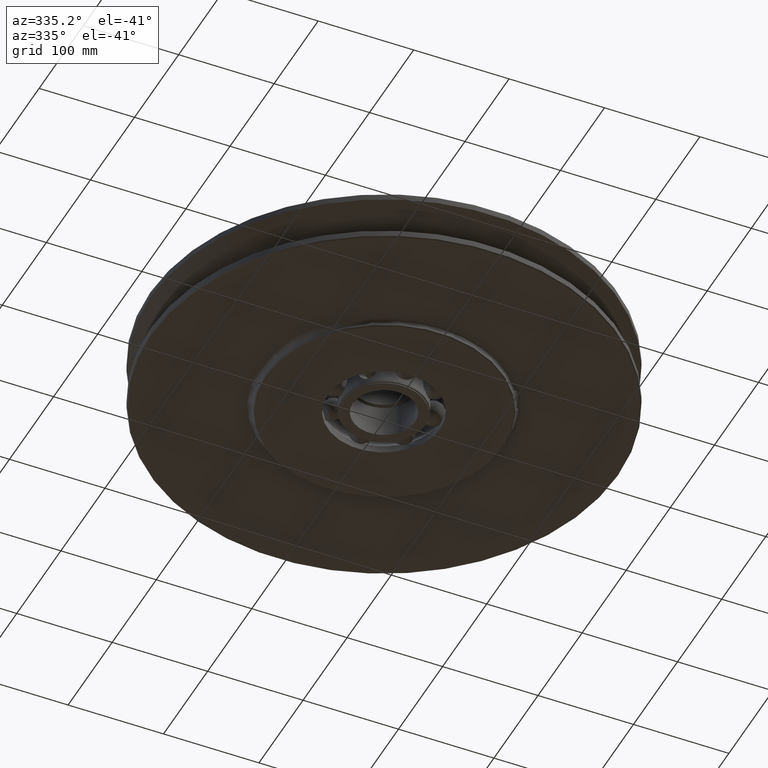
[diagram: clean part render]
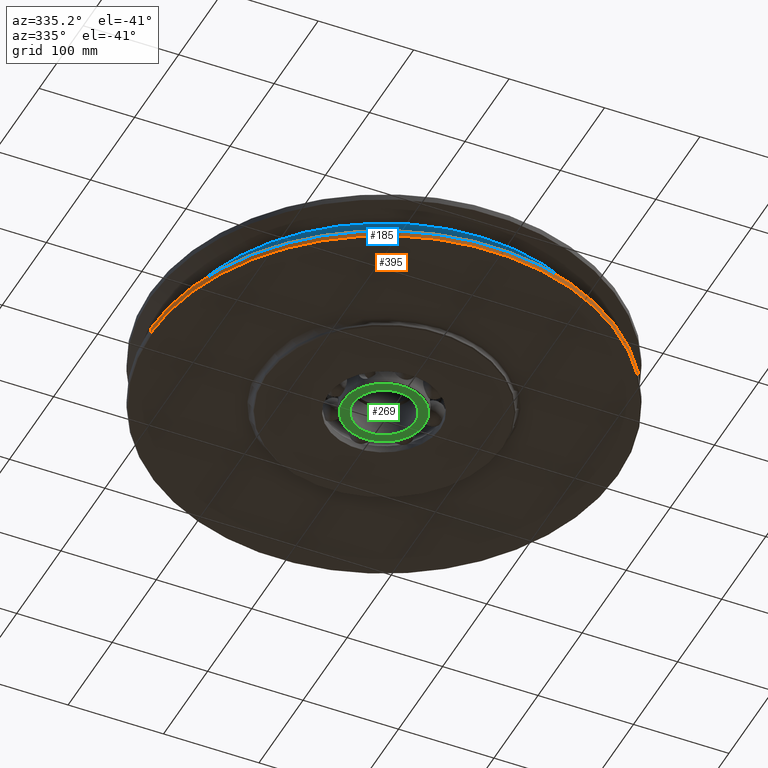
[diagram: same view with three faces highlighted in distinct colors, each labeled with its STEP entity id]
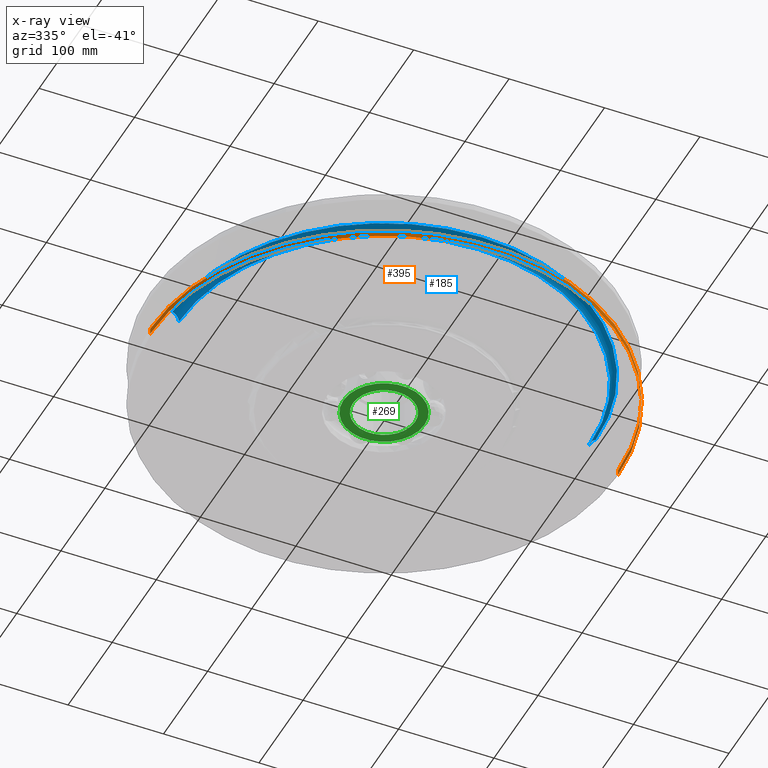
[diagram: x-ray of the same camera — body ghosted, the three highlighted faces saturated]
A machine part, auxiliary view with three faces highlighted in distinct colors.
The next image is the same camera in x-ray (body ghosted, the three faces saturated) — at least one of them is partly hidden behind the body in this view.
Their STEP definitions:

[orange] entity #395 — the highlighted cylindrical surface (partial cylindrical patch) has radius 245 mm, axis along (0, 0, 1).
#395=ADVANCED_FACE('',(#811),#812,.T.);
#811=FACE_OUTER_BOUND('',#1221,.T.);
#812=CYLINDRICAL_SURFACE('',#1222,245.0);
#1221=EDGE_LOOP('',(#2531,#2532,#2533,#2534));
#1222=AXIS2_PLACEMENT_3D('',#2535,#2536,#2537);
#2531=ORIENTED_EDGE('',*,*,#2665,.T.);
#2532=ORIENTED_EDGE('',*,*,#3097,.F.);
#2533=ORIENTED_EDGE('',*,*,#2667,.T.);
#2534=ORIENTED_EDGE('',*,*,#3095,.T.);
#2535=CARTESIAN_POINT('',(0.0,0.0,-22.854777));
#2536=DIRECTION('',(0.0,0.0,1.0));
#2537=DIRECTION('',(1.0,0.0,0.0));
#2665=EDGE_CURVE('',#3278,#3271,#3279,.T.);
#2667=EDGE_CURVE('',#3273,#3280,#3282,.T.);
#3095=EDGE_CURVE('',#3280,#3278,#3912,.T.);
#3097=EDGE_CURVE('',#3273,#3271,#3914,.T.);
#3271=VERTEX_POINT('',#5306);
#3273=VERTEX_POINT('',#5309);
#3278=VERTEX_POINT('',#5315);
#3279=LINE('',#5316,#5317);
#3280=VERTEX_POINT('',#5318);
#3282=LINE('',#5320,#5321);
#3912=CIRCLE('',#9111,245.0);
#3914=CIRCLE('',#9113,245.0);
#5306=CARTESIAN_POINT('',(245.0,0.0,-19.709554));
#5309=CARTESIAN_POINT('',(-245.0,3.00038465791101E-014,-19.709554));
#5315=CARTESIAN_POINT('',(245.0,0.0,-26.0));
#5316=CARTESIAN_POINT('',(245.0,-3.00038465791101E-014,-22.854777));
#5317=VECTOR('',#9254,1.0);
#5318=CARTESIAN_POINT('',(-245.0,3.00038465791101E-014,-26.0));
#5320=CARTESIAN_POINT('',(-245.0,3.00038465791101E-014,-22.854777));
#5321=VECTOR('',#9258,1.0);
#9111=AXIS2_PLACEMENT_3D('',#9728,#9729,#9730);
#9113=AXIS2_PLACEMENT_3D('',#9731,#9732,#9733);
#9254=DIRECTION('',(0.0,0.0,1.0));
#9258=DIRECTION('',(-0.0,-0.0,-1.0));
#9728=CARTESIAN_POINT('',(0.0,0.0,-26.0));
#9729=DIRECTION('',(0.0,0.0,1.0));
#9730=DIRECTION('',(1.0,0.0,0.0));
#9731=CARTESIAN_POINT('',(0.0,0.0,-19.709554));
#9732=DIRECTION('',(0.0,0.0,1.0));
#9733=DIRECTION('',(1.0,0.0,0.0));

[blue] entity #185 — the highlighted toroidal blend (fillet) surface has major radius 225.9 mm and minor (blend) radius 10.9 mm.
#185=ADVANCED_FACE('',(#472),#473,.F.);
#472=FACE_OUTER_BOUND('',#882,.T.);
#473=TOROIDAL_SURFACE('',#883,225.8999998872,10.8999998872);
#882=EDGE_LOOP('',(#1371,#1372,#1373,#1374));
#883=AXIS2_PLACEMENT_3D('',#1375,#1376,#1377);
#1371=ORIENTED_EDGE('',*,*,#2649,.F.);
#1372=ORIENTED_EDGE('',*,*,#2567,.F.);
#1373=ORIENTED_EDGE('',*,*,#2650,.F.);
#1374=ORIENTED_EDGE('',*,*,#2565,.F.);
#1375=CARTESIAN_POINT('',(0.0,0.0,0.0));
#1376=DIRECTION('',(0.0,0.0,1.0));
#1377=DIRECTION('',(1.0,0.0,0.0));
#2565=EDGE_CURVE('',#3103,#3106,#3107,.T.);
#2567=EDGE_CURVE('',#3108,#3104,#3110,.T.);
#2649=EDGE_CURVE('',#3104,#3103,#3256,.T.);
#2650=EDGE_CURVE('',#3106,#3108,#3257,.T.);
#3103=VERTEX_POINT('',#3920);
#3104=VERTEX_POINT('',#3921);
#3106=VERTEX_POINT('',#3923);
#3107=CIRCLE('',#3924,10.8999998872);
#3108=VERTEX_POINT('',#3925);
#3110=CIRCLE('',#3927,10.8999998872);
#3256=CIRCLE('',#5289,215.0);
#3257=CIRCLE('',#5290,221.728751);
#3920=CARTESIAN_POINT('',(-215.0,2.67083753074077E-014,1.3348649972566E-015));
#3921=CARTESIAN_POINT('',(215.0,-2.67083753074077E-014,1.3348649972566E-015));
#3923=CARTESIAN_POINT('',(-221.728751,2.7153940519109E-014,10.070287));
#3924=AXIS2_PLACEMENT_3D('',#9121,#9122,#9123);
#3925=CARTESIAN_POINT('',(221.728751,0.0,10.070287));
#3927=AXIS2_PLACEMENT_3D('',#9127,#9128,#9129);
#5289=AXIS2_PLACEMENT_3D('',#9226,#9227,#9228);
#5290=AXIS2_PLACEMENT_3D('',#9229,#9230,#9231);
#9121=CARTESIAN_POINT('',(-225.8999998872,2.76647711789247E-014,0.0));
#9122=DIRECTION('',(-1.22464679914735E-016,-1.0,0.0));
#9123=DIRECTION('',(-1.0,1.22464679914735E-016,-0.0));
#9127=CARTESIAN_POINT('',(225.8999998872,-2.76647711789247E-014,0.0));
#9128=DIRECTION('',(-1.22464679914735E-016,-1.0,0.0));
#9129=DIRECTION('',(1.0,-1.22464679914735E-016,0.0));
#9226=CARTESIAN_POINT('',(0.0,0.0,1.3348649972566E-015));
#9227=DIRECTION('',(-0.0,0.0,-1.0));
#9228=DIRECTION('',(-1.0,0.0,0.0));
#9229=CARTESIAN_POINT('',(0.0,0.0,10.070287));
#9230=DIRECTION('',(0.0,0.0,1.0));
#9231=DIRECTION('',(1.0,0.0,0.0));

[green] entity #269 — the highlighted planar face has unit normal (0, 0, -1).
#269=ADVANCED_FACE('',(#604,#605),#606,.T.);
#604=FACE_BOUND('',#1014,.T.);
#605=FACE_OUTER_BOUND('',#1015,.T.);
#606=PLANE('',#1016);
#1014=EDGE_LOOP('',(#1859,#1860));
#1015=EDGE_LOOP('',(#1861,#1862));
#1016=AXIS2_PLACEMENT_3D('',#1863,#1864,#1865);
#1859=ORIENTED_EDGE('',*,*,#2951,.T.);
#1860=ORIENTED_EDGE('',*,*,#2934,.T.);
#1861=ORIENTED_EDGE('',*,*,#2949,.T.);
#1862=ORIENTED_EDGE('',*,*,#2944,.T.);
#1863=CARTESIAN_POINT('',(0.0,0.0,-36.0));
#1864=DIRECTION('',(0.0,0.0,-1.0));
#1865=DIRECTION('',(-1.0,0.0,0.0));
#2934=EDGE_CURVE('',#3725,#3722,#3726,.T.);
#2944=EDGE_CURVE('',#3743,#3740,#3744,.T.);
#2949=EDGE_CURVE('',#3740,#3743,#3750,.T.);
#2951=EDGE_CURVE('',#3722,#3725,#3752,.T.);
#3722=VERTEX_POINT('',#7827);
#3725=VERTEX_POINT('',#7831);
#3726=CIRCLE('',#7832,32.5);
#3740=VERTEX_POINT('',#7849);
#3743=VERTEX_POINT('',#7853);
#3744=CIRCLE('',#7854,42.5);
#3750=CIRCLE('',#7861,42.5);
#3752=CIRCLE('',#7863,32.5);
#7827=CARTESIAN_POINT('',(32.5,0.0,-36.0));
#7831=CARTESIAN_POINT('',(-32.5,-3.9801020972289E-015,-36.0));
#7832=AXIS2_PLACEMENT_3D('',#9597,#9598,#9599);
#7849=CARTESIAN_POINT('',(42.5,0.0,-36.0));
#7853=CARTESIAN_POINT('',(-42.5,5.20474889637625E-015,-36.0));
#7854=AXIS2_PLACEMENT_3D('',#9613,#9614,#9615);
#7861=AXIS2_PLACEMENT_3D('',#9623,#9624,#9625);
#7863=AXIS2_PLACEMENT_3D('',#9626,#9627,#9628);
#9597=CARTESIAN_POINT('',(0.0,0.0,-36.0));
#9598=DIRECTION('',(0.0,-0.0,1.0));
#9599=DIRECTION('',(1.0,0.0,0.0));
#9613=CARTESIAN_POINT('',(0.0,0.0,-36.0));
#9614=DIRECTION('',(0.0,0.0,-1.0));
#9615=DIRECTION('',(1.0,0.0,0.0));
#9623=CARTESIAN_POINT('',(0.0,0.0,-36.0));
#9624=DIRECTION('',(0.0,0.0,-1.0));
#9625=DIRECTION('',(1.0,0.0,0.0));
#9626=CARTESIAN_POINT('',(0.0,0.0,-36.0));
#9627=DIRECTION('',(0.0,-0.0,1.0));
#9628=DIRECTION('',(1.0,0.0,0.0));